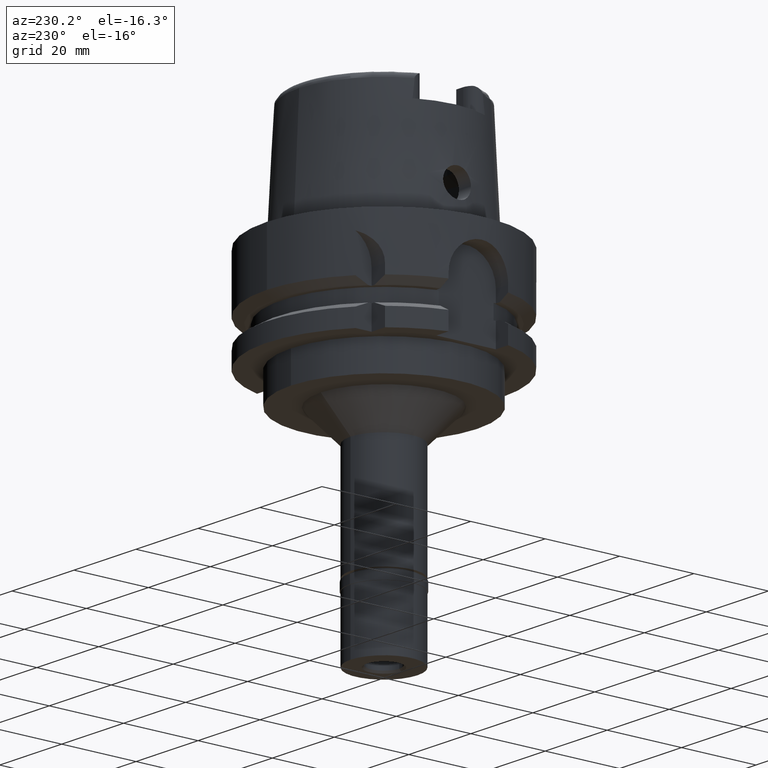
[diagram: clean part render]
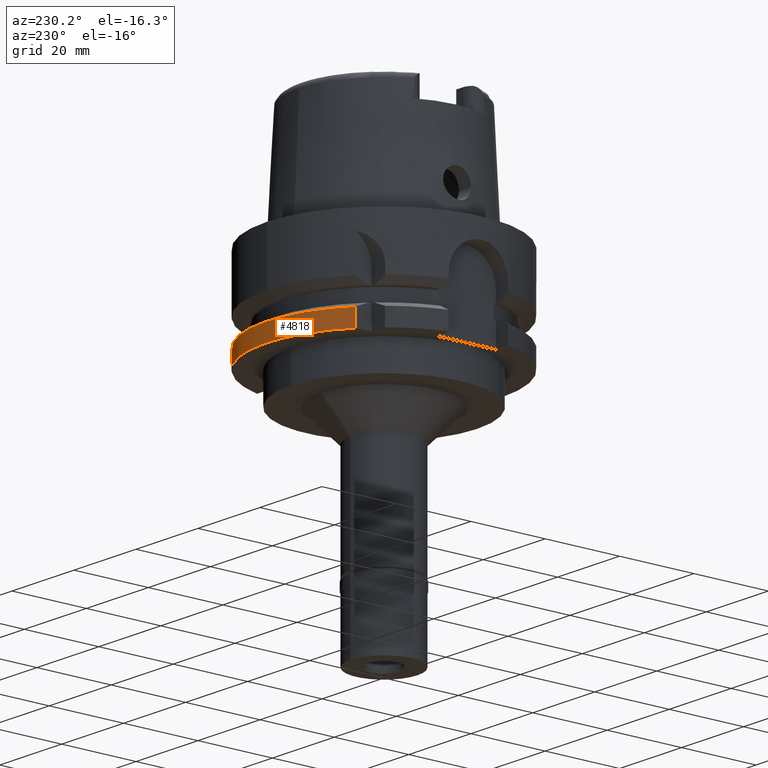
[diagram: same view with one face highlighted and labeled with its STEP entity id]
A machine part, auxiliary view. The second image highlights one B-rep face of the part: STEP entity #4818.
In plain terms, the highlighted cylindrical surface (partial cylindrical patch) has radius 31.5 mm, axis along (0, 0, 1).
Its self-contained STEP definition (entity closure, byte-faithful):
#147 = CARTESIAN_POINT ( 'NONE',  ( -20.00001377820999693, 24.33617572402999940, -21.37754845249999747 ) ) ;
#338 = DIRECTION ( 'NONE',  ( -0.6349206349206079070, 0.7725773665802099233, 0.0000000000000000000 ) ) ;
#372 = VERTEX_POINT ( 'NONE', #2769 ) ;
#612 = VECTOR ( 'NONE', #4439, 1000.000000000000114 ) ;
#697 = CARTESIAN_POINT ( 'NONE',  ( -20.00001377820999693, 24.33617572402999940, -21.37754845249999747 ) ) ;
#846 = DIRECTION ( 'NONE',  ( 0.0000000000000000000, 1.000000000000000000, 0.0000000000000000000 ) ) ;
#848 = ORIENTED_EDGE ( 'NONE', *, *, #5116, .T. ) ;
#988 = CARTESIAN_POINT ( 'NONE',  ( 30.18691769625000276, 9.000000000000000000, -26.00000000000000000 ) ) ;
#1053 = EDGE_CURVE ( 'NONE', #372, #3004, #3222, .T. ) ;
#1118 = DIRECTION ( 'NONE',  ( 0.0000000000000000000, 0.0000000000000000000, 1.000000000000000000 ) ) ;
#1269 = ORIENTED_EDGE ( 'NONE', *, *, #4383, .F. ) ;
#1326 = DIRECTION ( 'NONE',  ( 0.0000000000000000000, 0.0000000000000000000, -1.000000000000000000 ) ) ;
#1424 = CARTESIAN_POINT ( 'NONE',  ( -20.00000000000000000, 24.33618704727999926, -26.00000000000000000 ) ) ;
#1760 = CARTESIAN_POINT ( 'NONE',  ( -20.00000000000000000, 24.33617949844698458, -22.91836563500000068 ) ) ;
#1905 = EDGE_CURVE ( 'NONE', #372, #5114, #3545, .T. ) ;
#2003 = CIRCLE ( 'NONE', #5328, 31.50000000000000711 ) ;
#2234 = VERTEX_POINT ( 'NONE', #697 ) ;
#2400 = EDGE_LOOP ( 'NONE', ( #848, #4156, #3738, #1269 ) ) ;
#2536 = CARTESIAN_POINT ( 'NONE',  ( 0.0000000000000000000, 0.0000000000000000000, -91.27000000000001023 ) ) ;
#2562 = FACE_OUTER_BOUND ( 'NONE', #2400, .T. ) ;
#2577 = CARTESIAN_POINT ( 'NONE',  ( 30.18691748956999987, 9.000000693226999360, -21.37750466617000100 ) ) ;
#2745 = B_SPLINE_CURVE_WITH_KNOTS ( 'NONE', 3,
 ( #147, #1760, #4434, #1424 ),
 .UNSPECIFIED., .F., .F.,
 ( 4, 4 ),
 ( 0.0000000000000000000, 1.000000000000000000 ),
 .UNSPECIFIED. ) ;
#2769 = CARTESIAN_POINT ( 'NONE',  ( 30.18691769625000276, 9.000000000000000000, -26.00000000000000000 ) ) ;
#2846 = CARTESIAN_POINT ( 'NONE',  ( 0.0000000000000000000, 0.0000000000000000000, -26.00000000000000000 ) ) ;
#3004 = VERTEX_POINT ( 'NONE', #5010 ) ;
#3090 = AXIS2_PLACEMENT_3D ( 'NONE', #2536, #5110, #846 ) ;
#3144 = AXIS2_PLACEMENT_3D ( 'NONE', #2846, #1118, #4591 ) ;
#3222 = CIRCLE ( 'NONE', #3144, 31.50000000000000000 ) ;
#3545 = LINE ( 'NONE', #988, #612 ) ;
#3738 = ORIENTED_EDGE ( 'NONE', *, *, #1053, .T. ) ;
#3798 = CYLINDRICAL_SURFACE ( 'NONE', #3090, 31.50000000000000000 ) ;
#3949 = CARTESIAN_POINT ( 'NONE',  ( 0.0000000000000000000, 0.0000000000000000000, -21.37749907476000288 ) ) ;
#4156 = ORIENTED_EDGE ( 'NONE', *, *, #1905, .F. ) ;
#4383 = EDGE_CURVE ( 'NONE', #2234, #3004, #2745, .T. ) ;
#4434 = CARTESIAN_POINT ( 'NONE',  ( -20.00000000000000000, 24.33618327286396621, -24.45918281749999679 ) ) ;
#4439 = DIRECTION ( 'NONE',  ( -4.471178106439943517E-08, 1.499681708312981633E-07, 0.9999999999999876765 ) ) ;
#4591 = DIRECTION ( 'NONE',  ( 0.0000000000000000000, 1.000000000000000000, 0.0000000000000000000 ) ) ;
#4818 = ADVANCED_FACE ( 'NONE', ( #2562 ), #3798, .T. ) ;
#5010 = CARTESIAN_POINT ( 'NONE',  ( -20.00000000000000000, 24.33618704727999926, -26.00000000000000000 ) ) ;
#5110 = DIRECTION ( 'NONE',  ( 0.0000000000000000000, 0.0000000000000000000, 1.000000000000000000 ) ) ;
#5114 = VERTEX_POINT ( 'NONE', #2577 ) ;
#5116 = EDGE_CURVE ( 'NONE', #2234, #5114, #2003, .T. ) ;
#5328 = AXIS2_PLACEMENT_3D ( 'NONE', #3949, #1326, #338 ) ;